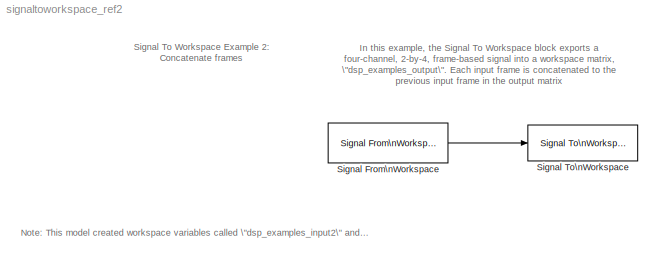
MODEL signaltoworkspace_ref2
KIND model
CONFIG AbsTol = auto
CONFIG FixedStep = auto
CONFIG MaxStep = auto
CONFIG MinStep = auto
CONFIG PreLoadFcn = dsp_examples_input2=[1:22; -1:-1:-22; ones(1,22); zeros(1,22)]'; dsp_examples_output=0;
CONFIG RelTol = 1e-3
CONFIG Solver = FixedStepDiscrete
CONFIG SolverMode = Auto
CONFIG StartTime = 0.0
CONFIG StopTime = 10.0
BLOCK [Reference] Signal From\nWorkspace  REF=dspsrcs4/Signal From\nWorkspace
  OutputAfterFinalValue = Setting to zero
  Ports = [0, 1]
  SourceBlock = dspsrcs4/Signal From\nWorkspace
  SourceType = Signal From Workspace
  Ts = 1/2
  X = dsp_examples_input2
  nsamps = 2
BLOCK [Reference] Signal To\nWorkspace  REF=dspsnks4/Signal To\nWorkspace
  Decimation = 1
  FrameMode = Concatenate frames (2-D array)
  MaxDataPoints = inf
  Ports = [1]
  SourceBlock = dspsnks4/Signal To\nWorkspace
  SourceType = Signal To Workspace
  VariableName = dsp_examples_output
ANNOTATION (root): In this example, the Signal To Workspace block exports a\nfour-channel, 2-by-4, frame-based signal into a workspace matrix,\n\"dsp_examples_output\". Each input frame is concatenated to the \nprevious input frame in the output matrix
ANNOTATION (root): Note: This model created workspace variables called \"dsp_examples_input2\" and \"dsp_examples_output\".
ANNOTATION (root): Signal To Workspace Example 2:\nConcatenate frames
LINE Signal From\nWorkspace:1 -> Signal To\nWorkspace:1
